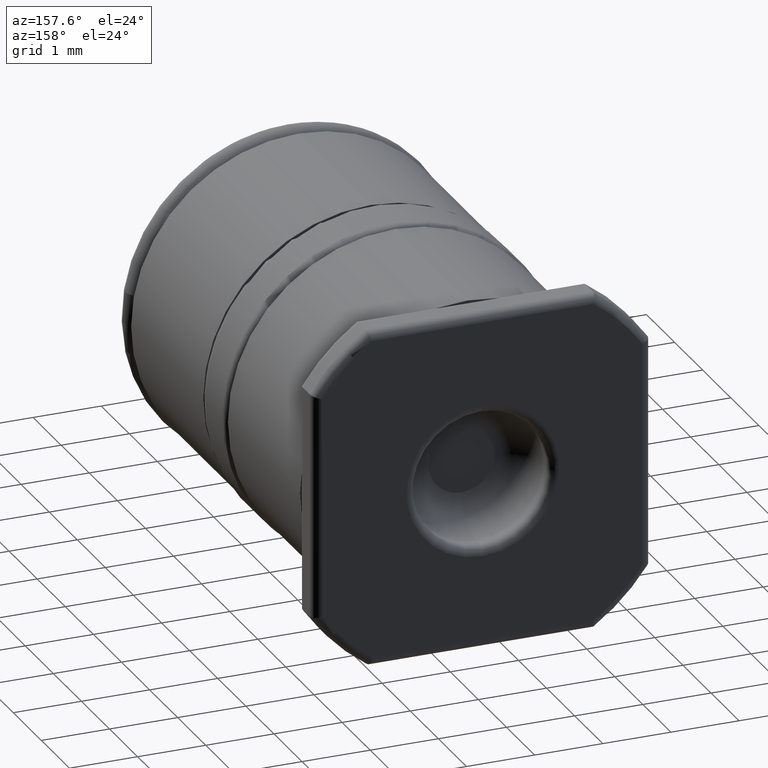
[diagram: clean part render]
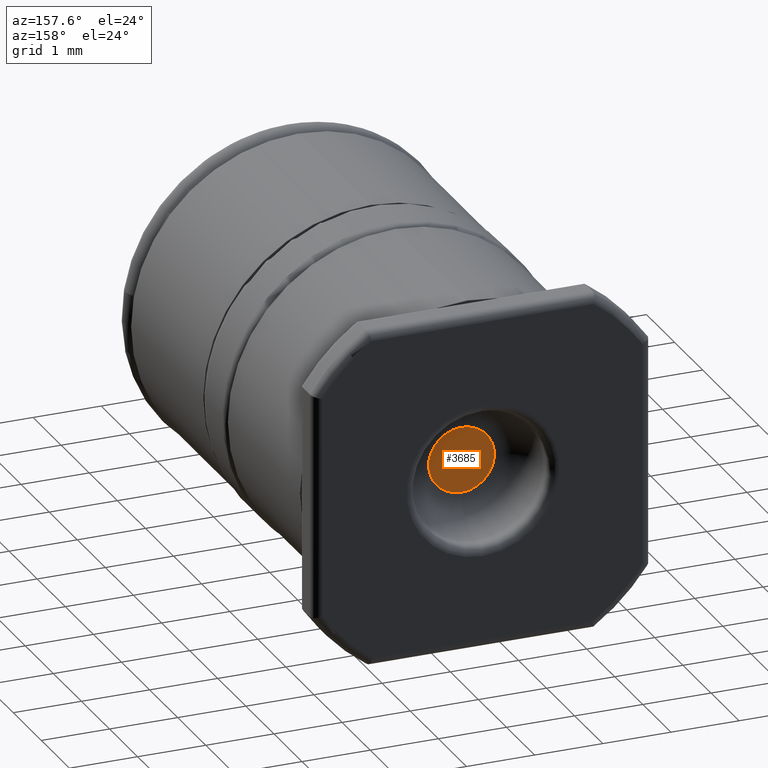
[diagram: same view with one face highlighted and labeled with its STEP entity id]
A machine part, auxiliary view. The second image highlights one B-rep face of the part: STEP entity #3685.
In plain terms, the highlighted planar face has unit normal (0, -1, 0).
Its self-contained STEP definition (entity closure, byte-faithful):
#401 = VERTEX_POINT ( 'NONE', #2856 ) ;
#458 = PLANE ( 'NONE',  #6820 ) ;
#1130 = VERTEX_POINT ( 'NONE', #3825 ) ;
#1200 = CARTESIAN_POINT ( 'NONE',  ( 0.0000000000000000000, 0.05060781321324800408, 0.0000000000000000000 ) ) ;
#1732 = ORIENTED_EDGE ( 'NONE', *, *, #3787, .T. ) ;
#1952 = DIRECTION ( 'NONE',  ( 0.0000000000000000000, 0.0000000000000000000, 1.000000000000000000 ) ) ;
#2551 = CIRCLE ( 'NONE', #3603, 0.01899999999999834807 ) ;
#2743 = CARTESIAN_POINT ( 'NONE',  ( 0.0000000000000000000, 0.05060781321324800408, 0.0000000000000000000 ) ) ;
#2832 = DIRECTION ( 'NONE',  ( -0.0000000000000000000, 1.000000000000000000, -0.0000000000000000000 ) ) ;
#2856 = CARTESIAN_POINT ( 'NONE',  ( 0.0000000000000000000, 0.05060781321324800408, 0.01899999999999834807 ) ) ;
#3332 = FACE_OUTER_BOUND ( 'NONE', #5266, .T. ) ;
#3603 = AXIS2_PLACEMENT_3D ( 'NONE', #5044, #2832, #1952 ) ;
#3685 = ADVANCED_FACE ( 'NONE', ( #3332 ), #458, .F. ) ;
#3787 = EDGE_CURVE ( 'NONE', #1130, #401, #4604, .T. ) ;
#3825 = CARTESIAN_POINT ( 'NONE',  ( 3.551475717527119222E-18, 0.05060781321324800408, -0.01899999999999834807 ) ) ;
#4039 = DIRECTION ( 'NONE',  ( -0.0000000000000000000, 1.000000000000000000, -0.0000000000000000000 ) ) ;
#4106 = DIRECTION ( 'NONE',  ( 0.0000000000000000000, 0.0000000000000000000, 1.000000000000000000 ) ) ;
#4604 = CIRCLE ( 'NONE', #5549, 0.01899999999999834807 ) ;
#4984 = DIRECTION ( 'NONE',  ( 0.0000000000000000000, -1.000000000000000000, 0.0000000000000000000 ) ) ;
#5044 = CARTESIAN_POINT ( 'NONE',  ( 0.0000000000000000000, 0.05060781321324800408, 0.0000000000000000000 ) ) ;
#5266 = EDGE_LOOP ( 'NONE', ( #6766, #1732 ) ) ;
#5549 = AXIS2_PLACEMENT_3D ( 'NONE', #1200, #4039, #4106 ) ;
#6199 = EDGE_CURVE ( 'NONE', #401, #1130, #2551, .T. ) ;
#6766 = ORIENTED_EDGE ( 'NONE', *, *, #6199, .T. ) ;
#6820 = AXIS2_PLACEMENT_3D ( 'NONE', #2743, #4984, #7212 ) ;
#7212 = DIRECTION ( 'NONE',  ( 0.0000000000000000000, -0.0000000000000000000, -1.000000000000000000 ) ) ;